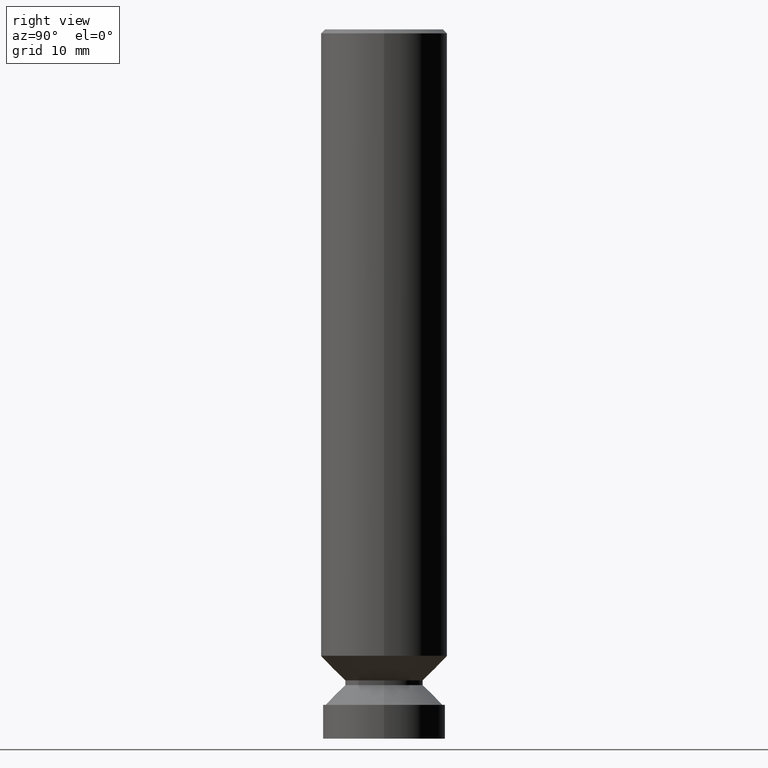
[diagram: clean part render]
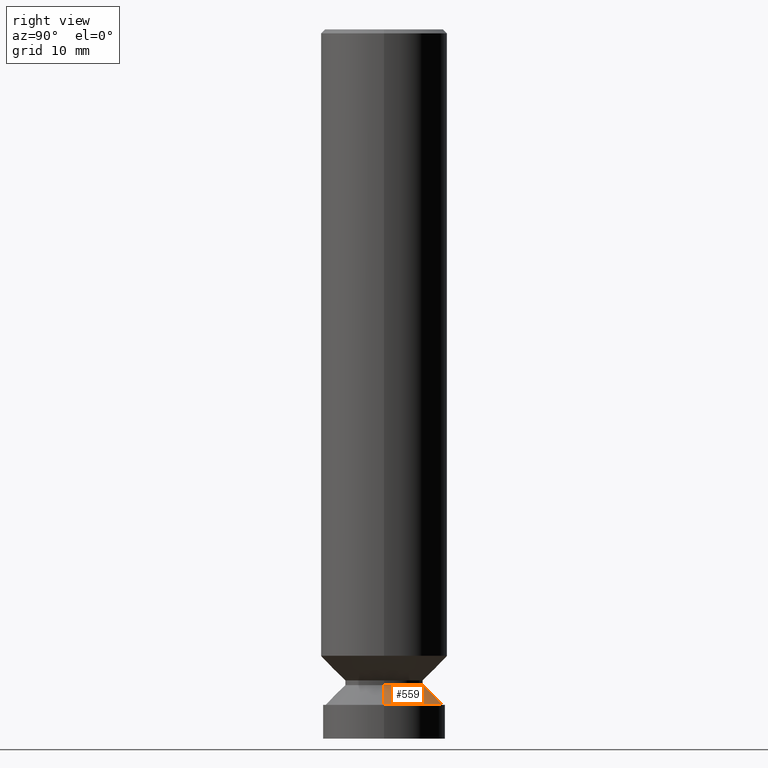
[diagram: same view with one face highlighted and labeled with its STEP entity id]
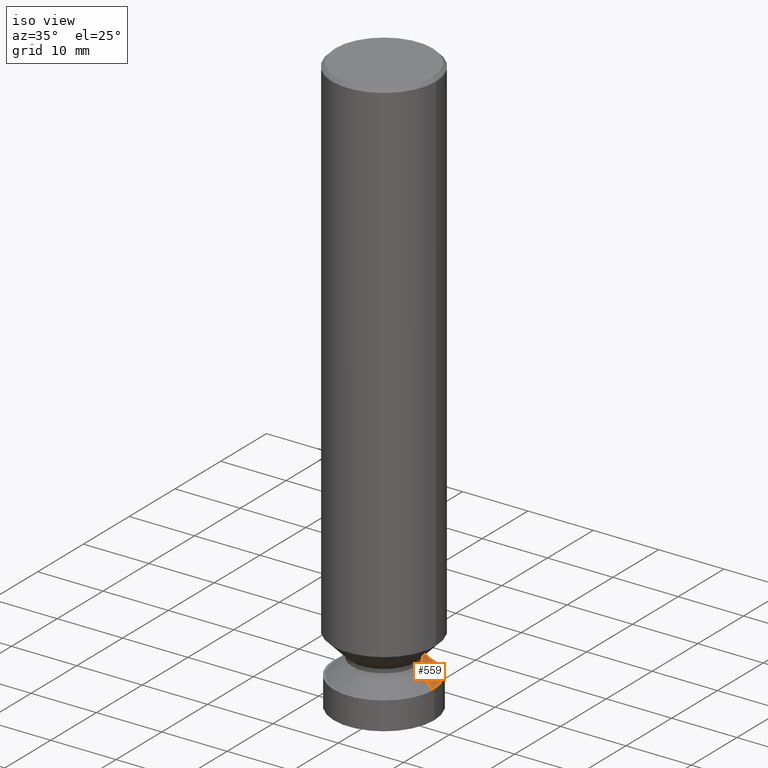
[diagram: same view with one face highlighted and labeled with its STEP entity id]
A machine part, right view. The second image highlights one B-rep face of the part: STEP entity #559.
A second angle (iso view) of the same face is appended — the face is thin or edge-on in the first view.
In plain terms, the highlighted conical surface has half-angle 45 deg.
Its self-contained STEP definition (entity closure, byte-faithful):
#16 = VERTEX_POINT ( 'NONE', #111 ) ;
#25 = LINE ( 'NONE', #339, #738 ) ;
#37 = CARTESIAN_POINT ( 'NONE',  ( -0.2895506378790078106, -9.615186004754840058E-15, -3.332999999999999741 ) ) ;
#66 = CARTESIAN_POINT ( 'NONE',  ( 7.912801856260040491E-29, -1.129738394095212894E-14, -3.235699362120996181 ) ) ;
#103 = EDGE_CURVE ( 'NONE', #16, #790, #575, .T. ) ;
#106 = ORIENTED_EDGE ( 'NONE', *, *, #686, .T. ) ;
#109 = VERTEX_POINT ( 'NONE', #600 ) ;
#111 = CARTESIAN_POINT ( 'NONE',  ( 0.2895506378790078106, -1.362356887378660573E-14, -3.332999999999999741 ) ) ;
#136 = CIRCLE ( 'NONE', #685, 0.1922499999999864595 ) ;
#160 = VERTEX_POINT ( 'NONE', #478 ) ;
#163 = EDGE_LOOP ( 'NONE', ( #356, #106, #269, #670 ) ) ;
#195 = DIRECTION ( 'NONE',  ( -0.7071067811866130759, 2.468850131082943764E-15, -0.7071067811864819586 ) ) ;
#201 = VECTOR ( 'NONE', #195, 39.37007874015748143 ) ;
#239 = DIRECTION ( 'NONE',  ( 1.000000000000000000, -6.982962677686262766E-15, 0.000000000000000000 ) ) ;
#269 = ORIENTED_EDGE ( 'NONE', *, *, #103, .T. ) ;
#286 = DIRECTION ( 'NONE',  ( 1.000000000000000000, -6.982962677686268288E-15, 0.000000000000000000 ) ) ;
#293 = CARTESIAN_POINT ( 'NONE',  ( 8.150747531015059748E-29, -1.163710730236420348E-14, -3.332999999999999741 ) ) ;
#297 = EDGE_CURVE ( 'NONE', #109, #790, #557, .T. ) ;
#336 = AXIS2_PLACEMENT_3D ( 'NONE', #293, #418, #286 ) ;
#339 = CARTESIAN_POINT ( 'NONE',  ( 0.2895506378790078106, -1.362356887378660573E-14, -3.332999999999999741 ) ) ;
#356 = ORIENTED_EDGE ( 'NONE', *, *, #467, .F. ) ;
#362 = AXIS2_PLACEMENT_3D ( 'NONE', #555, #620, #748 ) ;
#418 = DIRECTION ( 'NONE',  ( -2.445468806185136597E-29, 3.491481338843145583E-15, 1.000000000000000000 ) ) ;
#467 = EDGE_CURVE ( 'NONE', #160, #109, #136, .T. ) ;
#478 = CARTESIAN_POINT ( 'NONE',  ( 0.1922499999999864595, -1.311994177740510795E-14, -3.235699362120996181 ) ) ;
#555 = CARTESIAN_POINT ( 'NONE',  ( 8.150747531015059748E-29, -1.163710730236420348E-14, -3.332999999999999741 ) ) ;
#557 = LINE ( 'NONE', #626, #201 ) ;
#559 = ADVANCED_FACE ( 'NONE', ( #682 ), #610, .T. ) ;
#561 = DIRECTION ( 'NONE',  ( -2.445468806185136597E-29, 3.491481338843145583E-15, 1.000000000000000000 ) ) ;
#575 = CIRCLE ( 'NONE', #336, 0.2895506378790078106 ) ;
#600 = CARTESIAN_POINT ( 'NONE',  ( -0.1922499999999864595, -9.785047685460940438E-15, -3.235699362120996181 ) ) ;
#610 = CONICAL_SURFACE ( 'NONE', #362, 0.2895506378790078106, 0.7853981633975409826 ) ;
#620 = DIRECTION ( 'NONE',  ( 2.445468806185136597E-29, -3.491481338843145583E-15, -1.000000000000000000 ) ) ;
#626 = CARTESIAN_POINT ( 'NONE',  ( -0.2895506378790078106, -9.615186004754840058E-15, -3.332999999999999741 ) ) ;
#670 = ORIENTED_EDGE ( 'NONE', *, *, #297, .F. ) ;
#682 = FACE_OUTER_BOUND ( 'NONE', #163, .T. ) ;
#685 = AXIS2_PLACEMENT_3D ( 'NONE', #66, #561, #239 ) ;
#686 = EDGE_CURVE ( 'NONE', #160, #16, #25, .T. ) ;
#738 = VECTOR ( 'NONE', #777, 39.37007874015748143 ) ;
#748 = DIRECTION ( 'NONE',  ( -1.000000000000000000, 6.982962677686268288E-15, 0.000000000000000000 ) ) ;
#777 = DIRECTION ( 'NONE',  ( 0.7071067811866130759, -7.319954787623476926E-15, -0.7071067811864819586 ) ) ;
#790 = VERTEX_POINT ( 'NONE', #37 ) ;